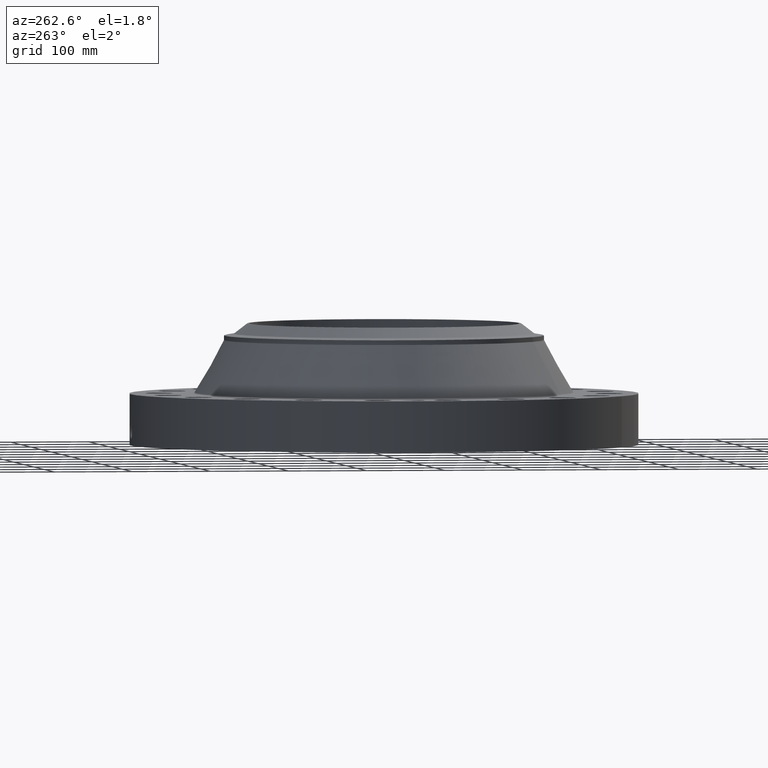
[diagram: clean part render]
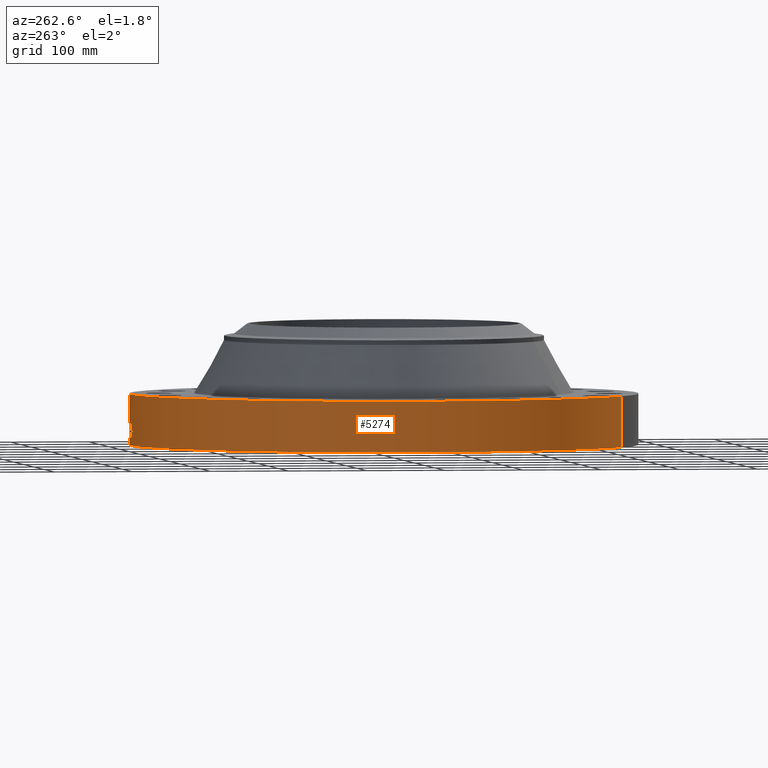
[diagram: same view with one face highlighted and labeled with its STEP entity id]
A machine part, auxiliary view. The second image highlights one B-rep face of the part: STEP entity #5274.
In plain terms, the highlighted cylindrical surface (partial cylindrical patch) has radius 323.85 mm, axis along (0, 0, -1).
Its self-contained STEP definition (entity closure, byte-faithful):
#3849=AXIS2_PLACEMENT_3D('Circle Axis2P3D',#3847,#3848,$) ;
#4488=AXIS2_PLACEMENT_3D('Circle Axis2P3D',#4486,#4487,$) ;
#5169=AXIS2_PLACEMENT_3D('Cylinder Axis2P3D',#5166,#5167,#5168) ;
#3847=CARTESIAN_POINT('Axis2P3D Location',(0.,0.,0.)) ;
#3851=CARTESIAN_POINT('Vertex',(-6.11267561723,-11.1891776641,1.1189649382E-015)) ;
#3853=CARTESIAN_POINT('Vertex',(6.11267561723,11.1891776641,1.1189649382E-015)) ;
#4481=CARTESIAN_POINT('Vertex',(6.11267561723,11.1891776641,2.56300000001)) ;
#4483=CARTESIAN_POINT('Vertex',(-6.11267561723,-11.1891776641,2.56300000001)) ;
#4486=CARTESIAN_POINT('Axis2P3D Location',(0.,0.,2.56300000001)) ;
#5166=CARTESIAN_POINT('Axis2P3D Location',(0.,0.,3.03150000001)) ;
#5171=CARTESIAN_POINT('Line Origine',(-6.11267561723,-11.1891776641,1.28150000001)) ;
#5176=CARTESIAN_POINT('Line Origine',(6.11267561723,11.1891776641,1.28150000001)) ;
#5188=CARTESIAN_POINT('Control Point',(-0.000716221208319,12.7499999799,1.10411846088)) ;
#5189=CARTESIAN_POINT('Control Point',(-0.0192056781349,12.7499989413,1.10408110421)) ;
#5190=CARTESIAN_POINT('Control Point',(-0.0376918605355,12.7499573581,1.10259136038)) ;
#5191=CARTESIAN_POINT('Control Point',(-0.0559484067638,12.7498772456,1.09966767561)) ;
#5192=CARTESIAN_POINT('Vertex',(-0.000715800027097,12.74999998,1.10411851024)) ;
#5194=CARTESIAN_POINT('Vertex',(-0.0559392649745,12.7498775403,1.09966915855)) ;
#5198=CARTESIAN_POINT('Control Point',(-0.0559391674778,12.7498772861,1.09966860309)) ;
#5199=CARTESIAN_POINT('Control Point',(-0.0961344607208,12.7497009322,1.09514556337)) ;
#5200=CARTESIAN_POINT('Control Point',(-0.135662238859,12.7493301537,1.08330267512)) ;
#5201=CARTESIAN_POINT('Control Point',(-0.172040385174,12.7488392455,1.06494868271)) ;
#5202=CARTESIAN_POINT('Vertex',(-0.172040385174,12.7488392455,1.06494868271)) ;
#5206=CARTESIAN_POINT('Control Point',(-0.0308107318399,12.7499627725,0.341174001278)) ;
#5207=CARTESIAN_POINT('Control Point',(-0.0999545300341,12.7497956841,0.349935336611)) ;
#5208=CARTESIAN_POINT('Control Point',(-0.166759328003,12.7491655316,0.374146678971)) ;
#5209=CARTESIAN_POINT('Control Point',(-0.226389865562,12.7481446892,0.41297315722)) ;
#5210=CARTESIAN_POINT('Control Point',(-0.298759169507,12.7465677606,0.487010236014)) ;
#5211=CARTESIAN_POINT('Control Point',(-0.343480904883,12.7453828607,0.577215669289)) ;
#5212=CARTESIAN_POINT('Control Point',(-0.354926191118,12.7450633095,0.607930226011)) ;
#5213=CARTESIAN_POINT('Control Point',(-0.373429784123,12.7445343217,0.67924515483)) ;
#5214=CARTESIAN_POINT('Control Point',(-0.375104757105,12.744479267,0.752596904671)) ;
#5215=CARTESIAN_POINT('Control Point',(-0.370729719905,12.7446111714,0.793234525336)) ;
#5216=CARTESIAN_POINT('Control Point',(-0.348316602867,12.7452690159,0.885611096299)) ;
#5217=CARTESIAN_POINT('Control Point',(-0.299005534076,12.7465456055,0.966961752417)) ;
#5218=CARTESIAN_POINT('Control Point',(-0.262643867099,12.747395247,1.00786909638)) ;
#5219=CARTESIAN_POINT('Control Point',(-0.219548979689,12.7481981364,1.04097900282)) ;
#5220=CARTESIAN_POINT('Control Point',(-0.172040385174,12.7488392455,1.06494868271)) ;
#5221=CARTESIAN_POINT('Vertex',(-0.0308107318399,12.7499627725,0.341174001278)) ;
#5225=CARTESIAN_POINT('Control Point',(-0.0308107318399,12.7499627725,0.341174001278)) ;
#5226=CARTESIAN_POINT('Control Point',(-0.0205353390008,12.7499876033,0.34087236656)) ;
#5227=CARTESIAN_POINT('Control Point',(-0.0102530975905,12.7500000022,0.340939426773)) ;
#5228=CARTESIAN_POINT('Control Point',(2.72878355366E-006,12.7500000001,0.341374667805)) ;
#5229=CARTESIAN_POINT('Vertex',(2.72878353932E-006,12.7500000001,0.341374667805)) ;
#5233=CARTESIAN_POINT('Control Point',(0.192797685506,12.7485422325,0.397096993603)) ;
#5234=CARTESIAN_POINT('Control Point',(0.14907170358,12.7492035056,0.371854438807)) ;
#5235=CARTESIAN_POINT('Control Point',(0.10112895636,12.7497293522,0.353715242693)) ;
#5236=CARTESIAN_POINT('Control Point',(0.0508105127861,12.7499999892,0.343530869226)) ;
#5237=CARTESIAN_POINT('Control Point',(2.72878353102E-006,12.7500000001,0.341374667805)) ;
#5238=CARTESIAN_POINT('Vertex',(0.192797685506,12.7485422325,0.397096993603)) ;
#5242=CARTESIAN_POINT('Control Point',(0.192797685506,12.7485422325,0.397096993603)) ;
#5243=CARTESIAN_POINT('Control Point',(0.249749527951,12.7476809432,0.429974700768)) ;
#5244=CARTESIAN_POINT('Control Point',(0.300014608128,12.746602678,0.474147636424)) ;
#5245=CARTESIAN_POINT('Control Point',(0.340461265083,12.7455024634,0.528136964009)) ;
#5246=CARTESIAN_POINT('Control Point',(0.385069985542,12.7441957941,0.626179506133)) ;
#5247=CARTESIAN_POINT('Control Point',(0.393917723146,12.7439118252,0.73147848146)) ;
#5248=CARTESIAN_POINT('Control Point',(0.391894361197,12.7439760979,0.771571275703)) ;
#5249=CARTESIAN_POINT('Control Point',(0.377905160413,12.7444129305,0.846398271286)) ;
#5250=CARTESIAN_POINT('Control Point',(0.345953392109,12.7453207294,0.914777545594)) ;
#5251=CARTESIAN_POINT('Control Point',(0.326955720898,12.7458335859,0.945195634655)) ;
#5252=CARTESIAN_POINT('Control Point',(0.265053379964,12.7473627061,1.02210535845)) ;
#5253=CARTESIAN_POINT('Control Point',(0.181582159395,12.7488883627,1.07540227934)) ;
#5254=CARTESIAN_POINT('Control Point',(0.122355707882,12.7496388059,1.09761818402)) ;
#5255=CARTESIAN_POINT('Control Point',(0.0606924383433,12.7500001232,1.10712988999)) ;
#5256=CARTESIAN_POINT('Control Point',(-2.5857935537E-005,12.75,1.10415298431)) ;
#5257=CARTESIAN_POINT('Vertex',(-2.58579355462E-005,12.75,1.10415298431)) ;
#5261=CARTESIAN_POINT('Control Point',(-0.000715800017352,12.74999998,1.10411851022)) ;
#5262=CARTESIAN_POINT('Control Point',(-0.000370853402302,12.7499999993,1.10413606982)) ;
#5263=CARTESIAN_POINT('Control Point',(-2.58579408024E-005,12.75,1.1041529843)) ;
#3848=DIRECTION('Axis2P3D Direction',(0.,0.,-0.0393700787402)) ;
#4487=DIRECTION('Axis2P3D Direction',(0.,0.,-0.0393700787402)) ;
#5167=DIRECTION('Axis2P3D Direction',(0.,0.,-0.0393700787402)) ;
#5168=DIRECTION('Axis2P3D XDirection',(0.0188750212049,0.0345504945626,0.)) ;
#5172=DIRECTION('Vector Direction',(0.,0.,-0.0393700787402)) ;
#5177=DIRECTION('Vector Direction',(0.,0.,-0.0393700787402)) ;
#5173=VECTOR('Line Direction',#5172,0.0393700787402) ;
#5178=VECTOR('Line Direction',#5177,0.0393700787402) ;
#5182=ORIENTED_EDGE('',*,*,#3855,.F.) ;
#5183=ORIENTED_EDGE('',*,*,#5175,.T.) ;
#5184=ORIENTED_EDGE('',*,*,#4490,.T.) ;
#5185=ORIENTED_EDGE('',*,*,#5180,.F.) ;
#5266=ORIENTED_EDGE('',*,*,#5196,.T.) ;
#5267=ORIENTED_EDGE('',*,*,#5204,.T.) ;
#5268=ORIENTED_EDGE('',*,*,#5223,.F.) ;
#5269=ORIENTED_EDGE('',*,*,#5231,.T.) ;
#5270=ORIENTED_EDGE('',*,*,#5240,.F.) ;
#5271=ORIENTED_EDGE('',*,*,#5259,.T.) ;
#5272=ORIENTED_EDGE('',*,*,#5264,.F.) ;
#5273=FACE_BOUND('',#5265,.T.) ;
#5274=ADVANCED_FACE('PartBody',(#5186,#5273),#5170,.T.) ;
#5187=B_SPLINE_CURVE_WITH_KNOTS('',3,(#5188,#5189,#5190,#5191),.UNSPECIFIED.,.F.,.U.,(4,4),(34.6164487192,36.6676791159),.UNSPECIFIED.) ;
#5197=B_SPLINE_CURVE_WITH_KNOTS('',3,(#5198,#5199,#5200,#5201),.UNSPECIFIED.,.F.,.U.,(4,4),(0.,4.54498981694),.UNSPECIFIED.) ;
#5205=B_SPLINE_CURVE_WITH_KNOTS('',5,(#5206,#5207,#5208,#5209,#5210,#5211,#5212,#5213,#5214,#5215,#5216,#5217,#5218,#5219,#5220),.UNSPECIFIED.,.F.,.U.,(6,3,3,3,6),(0.,12.1125870204,17.9739560872,25.3575287044,35.2501935312),.UNSPECIFIED.) ;
#5224=B_SPLINE_CURVE_WITH_KNOTS('',3,(#5225,#5226,#5227,#5228),.UNSPECIFIED.,.F.,.U.,(4,4),(0.,1.07185380478),.UNSPECIFIED.) ;
#5232=B_SPLINE_CURVE_WITH_KNOTS('',4,(#5233,#5234,#5235,#5236,#5237),.UNSPECIFIED.,.F.,.U.,(5,5),(0.,7.08001020796),.UNSPECIFIED.) ;
#5241=B_SPLINE_CURVE_WITH_KNOTS('',5,(#5242,#5243,#5244,#5245,#5246,#5247,#5248,#5249,#5250,#5251,#5252,#5253,#5254,#5255,#5256),.UNSPECIFIED.,.F.,.U.,(6,3,3,3,6),(0.,11.5268888766,18.5780205898,24.9818145568,36.3313240769),.UNSPECIFIED.) ;
#5260=B_SPLINE_CURVE_WITH_KNOTS('',2,(#5261,#5262,#5263),.UNSPECIFIED.,.F.,.U.,(3,3),(1.02805934228,1.05385406769),.UNSPECIFIED.) ;
#3850=CIRCLE('generated circle',#3849,12.7500000001) ;
#4489=CIRCLE('generated circle',#4488,12.7500000001) ;
#5170=CYLINDRICAL_SURFACE('generated cylinder',#5169,12.7500000001) ;
#3855=EDGE_CURVE('',#3852,#3854,#3850,.T.) ;
#4490=EDGE_CURVE('',#4484,#4482,#4489,.T.) ;
#5175=EDGE_CURVE('',#3852,#4484,#5174,.F.) ;
#5180=EDGE_CURVE('',#3854,#4482,#5179,.F.) ;
#5196=EDGE_CURVE('',#5193,#5195,#5187,.T.) ;
#5204=EDGE_CURVE('',#5195,#5203,#5197,.T.) ;
#5223=EDGE_CURVE('',#5222,#5203,#5205,.T.) ;
#5231=EDGE_CURVE('',#5222,#5230,#5224,.T.) ;
#5240=EDGE_CURVE('',#5239,#5230,#5232,.T.) ;
#5259=EDGE_CURVE('',#5239,#5258,#5241,.T.) ;
#5264=EDGE_CURVE('',#5193,#5258,#5260,.T.) ;
#5181=EDGE_LOOP('',(#5182,#5183,#5184,#5185)) ;
#5265=EDGE_LOOP('',(#5266,#5267,#5268,#5269,#5270,#5271,#5272)) ;
#5186=FACE_OUTER_BOUND('',#5181,.T.) ;
#5174=LINE('Line',#5171,#5173) ;
#5179=LINE('Line',#5176,#5178) ;
#3852=VERTEX_POINT('',#3851) ;
#3854=VERTEX_POINT('',#3853) ;
#4482=VERTEX_POINT('',#4481) ;
#4484=VERTEX_POINT('',#4483) ;
#5193=VERTEX_POINT('',#5192) ;
#5195=VERTEX_POINT('',#5194) ;
#5203=VERTEX_POINT('',#5202) ;
#5222=VERTEX_POINT('',#5221) ;
#5230=VERTEX_POINT('',#5229) ;
#5239=VERTEX_POINT('',#5238) ;
#5258=VERTEX_POINT('',#5257) ;